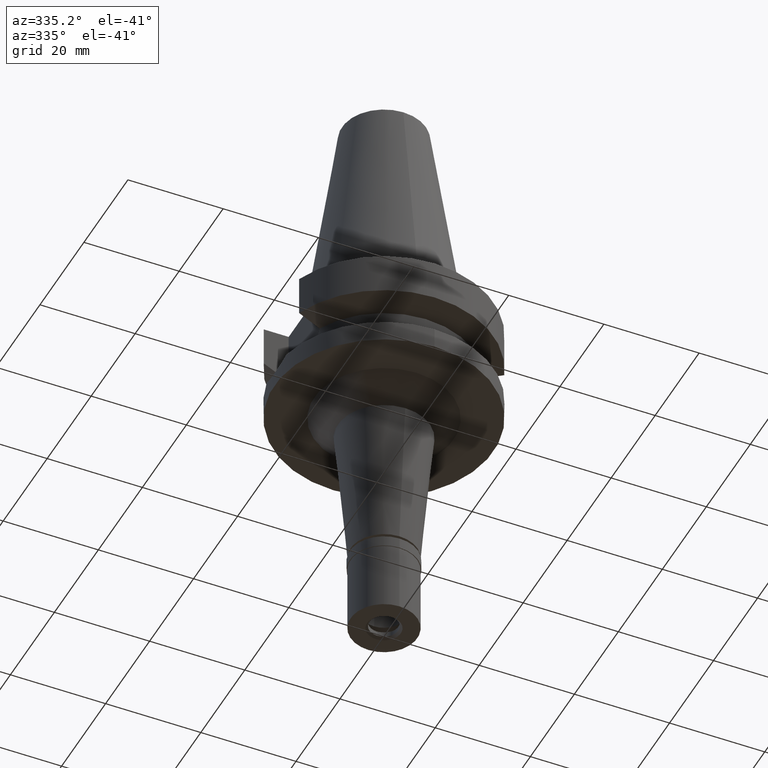
[diagram: clean part render]
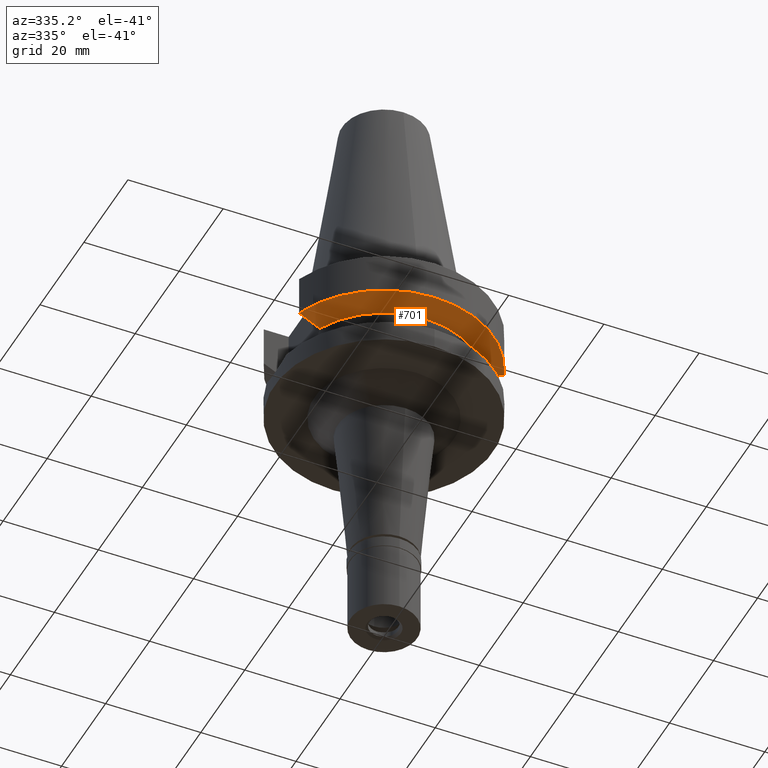
[diagram: same view with one face highlighted and labeled with its STEP entity id]
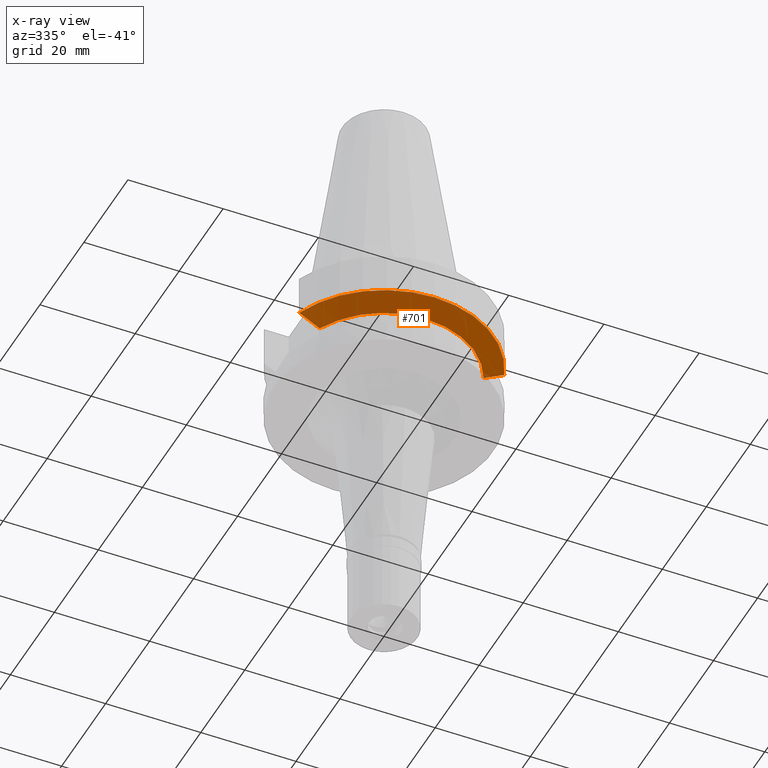
[diagram: x-ray of the same camera — body ghosted, the highlighted face saturated]
A machine part, auxiliary view. The second image highlights one B-rep face of the part: STEP entity #701.
The next image is the same camera in x-ray: the body ghosted, the highlighted face saturated — about 0% of this face is hidden behind the body in this view.
In plain terms, the highlighted conical surface has half-angle 60 deg.
Its self-contained STEP definition (entity closure, byte-faithful):
#10 = B_SPLINE_CURVE_WITH_KNOTS ( 'NONE', 3,
 ( #2158, #2842, #1032, #1492 ),
 .UNSPECIFIED., .F., .F.,
 ( 4, 4 ),
 ( 0.0000000000000000000, 1.000000000000000000 ),
 .UNSPECIFIED. ) ;
#24 = DIRECTION ( 'NONE',  ( 0.0000000000000000000, 0.0000000000000000000, 1.000000000000000000 ) ) ;
#65 = EDGE_CURVE ( 'NONE', #1096, #1531, #605, .T. ) ;
#109 = FACE_OUTER_BOUND ( 'NONE', #1106, .T. ) ;
#128 = ORIENTED_EDGE ( 'NONE', *, *, #2469, .T. ) ;
#139 = B_SPLINE_CURVE_WITH_KNOTS ( 'NONE', 3,
 ( #2818, #1412, #528, #1913 ),
 .UNSPECIFIED., .F., .F.,
 ( 4, 4 ),
 ( 0.0000000000000000000, 1.000000000000000000 ),
 .UNSPECIFIED. ) ;
#297 = AXIS2_PLACEMENT_3D ( 'NONE', #1503, #1061, #1029 ) ;
#312 = CARTESIAN_POINT ( 'NONE',  ( -17.72598979705365707, -8.027133611820948644, -11.61218201620178014 ) ) ;
#324 = CARTESIAN_POINT ( 'NONE',  ( -17.23531622822000386, -7.996491147957000223, -11.87660607717000083 ) ) ;
#339 = B_SPLINE_CURVE_WITH_KNOTS ( 'NONE', 3,
 ( #2100, #1650, #2560, #2824 ),
 .UNSPECIFIED., .F., .F.,
 ( 4, 4 ),
 ( 0.0000000000000000000, 1.000000000000000000 ),
 .UNSPECIFIED. ) ;
#403 = ORIENTED_EDGE ( 'NONE', *, *, #65, .F. ) ;
#480 = VERTEX_POINT ( 'NONE', #1077 ) ;
#528 = CARTESIAN_POINT ( 'NONE',  ( 20.64101735201231591, -8.050004185258069711, -10.05624233374762966 ) ) ;
#546 = CARTESIAN_POINT ( 'NONE',  ( -21.54524325238000060, -8.049999577366000025, -9.567211146628999074 ) ) ;
#605 = CIRCLE ( 'NONE', #2551, 19.00000000000000000 ) ;
#676 = ORIENTED_EDGE ( 'NONE', *, *, #2511, .F. ) ;
#701 = ADVANCED_FACE ( 'NONE', ( #109 ), #1193, .T. ) ;
#768 = DIRECTION ( 'NONE',  ( 0.0000000000000000000, 0.0000000000000000000, -1.000000000000000000 ) ) ;
#938 = CARTESIAN_POINT ( 'NONE',  ( 0.0000000000000000000, 1.093341284896999988E-14, -11.87660944646999894 ) ) ;
#949 = CARTESIAN_POINT ( 'NONE',  ( 0.0000000000000000000, 1.093341284896999988E-14, -9.567208369710998639 ) ) ;
#1029 = DIRECTION ( 'NONE',  ( 0.0000000000000000000, 1.000000000000000000, 0.0000000000000000000 ) ) ;
#1032 = CARTESIAN_POINT ( 'NONE',  ( 17.72682660392796095, -8.027186146807153477, -11.61172867117429419 ) ) ;
#1061 = DIRECTION ( 'NONE',  ( 0.0000000000000000000, 0.0000000000000000000, 1.000000000000000000 ) ) ;
#1073 = CARTESIAN_POINT ( 'NONE',  ( -18.96738966519000158, -8.049994318072998922, -10.95000099924999937 ) ) ;
#1077 = CARTESIAN_POINT ( 'NONE',  ( 21.54524309446999908, -8.050000000002000888, -9.567208369710998639 ) ) ;
#1096 = VERTEX_POINT ( 'NONE', #1838 ) ;
#1106 = EDGE_LOOP ( 'NONE', ( #676, #403, #1361, #1632, #1245, #128 ) ) ;
#1193 = CONICAL_SURFACE ( 'NONE', #297, 21.00000000000000000, 1.047197551196400456 ) ;
#1208 = CARTESIAN_POINT ( 'NONE',  ( -17.23531622822000386, -7.996491147957000223, -11.87660607717000083 ) ) ;
#1211 = CARTESIAN_POINT ( 'NONE',  ( -18.30334760937699201, -8.049999956192326778, -11.30291655530038852 ) ) ;
#1225 = CARTESIAN_POINT ( 'NONE',  ( -18.96738966519000158, -8.049994318072998922, -10.95000099924999937 ) ) ;
#1245 = ORIENTED_EDGE ( 'NONE', *, *, #2742, .F. ) ;
#1361 = ORIENTED_EDGE ( 'NONE', *, *, #2918, .F. ) ;
#1412 = CARTESIAN_POINT ( 'NONE',  ( 19.78176446227738339, -8.050001299918164932, -10.51717305795229151 ) ) ;
#1415 = CARTESIAN_POINT ( 'NONE',  ( 18.96736186693999926, -8.050001277873001015, -10.94999977540000025 ) ) ;
#1457 = EDGE_CURVE ( 'NONE', #1731, #480, #139, .T. ) ;
#1492 = CARTESIAN_POINT ( 'NONE',  ( 17.23531135313000107, -7.996501749111999402, -11.87660739354000050 ) ) ;
#1503 = CARTESIAN_POINT ( 'NONE',  ( 0.0000000000000000000, 1.093341284896999988E-14, -10.72190890808999875 ) ) ;
#1531 = VERTEX_POINT ( 'NONE', #1208 ) ;
#1632 = ORIENTED_EDGE ( 'NONE', *, *, #1457, .T. ) ;
#1650 = CARTESIAN_POINT ( 'NONE',  ( -20.64098922447006501, -8.049999155425616948, -10.05625859811076062 ) ) ;
#1731 = VERTEX_POINT ( 'NONE', #1415 ) ;
#1838 = CARTESIAN_POINT ( 'NONE',  ( 17.23531135313000107, -7.996501749111999402, -11.87660739354000050 ) ) ;
#1896 = AXIS2_PLACEMENT_3D ( 'NONE', #949, #24, #2519 ) ;
#1913 = CARTESIAN_POINT ( 'NONE',  ( 21.54524309446999908, -8.050000000002000888, -9.567208369710998639 ) ) ;
#2100 = CARTESIAN_POINT ( 'NONE',  ( -21.54524325238000060, -8.049999577366000025, -9.567211146628999074 ) ) ;
#2144 = VERTEX_POINT ( 'NONE', #1073 ) ;
#2158 = CARTESIAN_POINT ( 'NONE',  ( 18.96736186693999926, -8.050001277873001015, -10.94999977540000025 ) ) ;
#2469 = EDGE_CURVE ( 'NONE', #2478, #2144, #339, .T. ) ;
#2478 = VERTEX_POINT ( 'NONE', #546 ) ;
#2511 = EDGE_CURVE ( 'NONE', #1531, #2144, #2791, .T. ) ;
#2519 = DIRECTION ( 'NONE',  ( 0.0000000000000000000, -1.000000000000000000, 0.0000000000000000000 ) ) ;
#2551 = AXIS2_PLACEMENT_3D ( 'NONE', #938, #768, #2758 ) ;
#2560 = CARTESIAN_POINT ( 'NONE',  ( -19.78174442230801944, -8.049991903457389242, -10.51718567404479820 ) ) ;
#2667 = CIRCLE ( 'NONE', #1896, 23.00000000000000000 ) ;
#2742 = EDGE_CURVE ( 'NONE', #2478, #480, #2667, .T. ) ;
#2758 = DIRECTION ( 'NONE',  ( 0.0000000000000000000, -1.000000000000000000, 0.0000000000000000000 ) ) ;
#2791 = B_SPLINE_CURVE_WITH_KNOTS ( 'NONE', 3,
 ( #324, #312, #1211, #1225 ),
 .UNSPECIFIED., .F., .F.,
 ( 4, 4 ),
 ( 0.0000000000000000000, 1.000000000000000000 ),
 .UNSPECIFIED. ) ;
#2818 = CARTESIAN_POINT ( 'NONE',  ( 18.96736186693999926, -8.050001277873001015, -10.94999977540000025 ) ) ;
#2824 = CARTESIAN_POINT ( 'NONE',  ( -18.96738966519000158, -8.049994318072998922, -10.95000099924999937 ) ) ;
#2842 = CARTESIAN_POINT ( 'NONE',  ( 18.30417677519795916, -8.050000009833846448, -11.30245973939780235 ) ) ;
#2918 = EDGE_CURVE ( 'NONE', #1731, #1096, #10, .T. ) ;